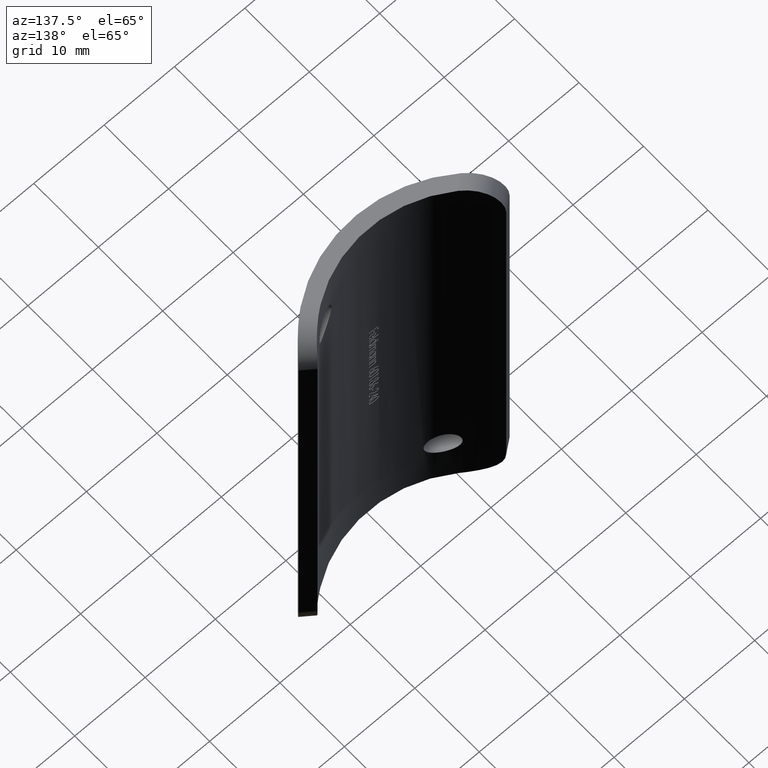
[diagram: clean part render]
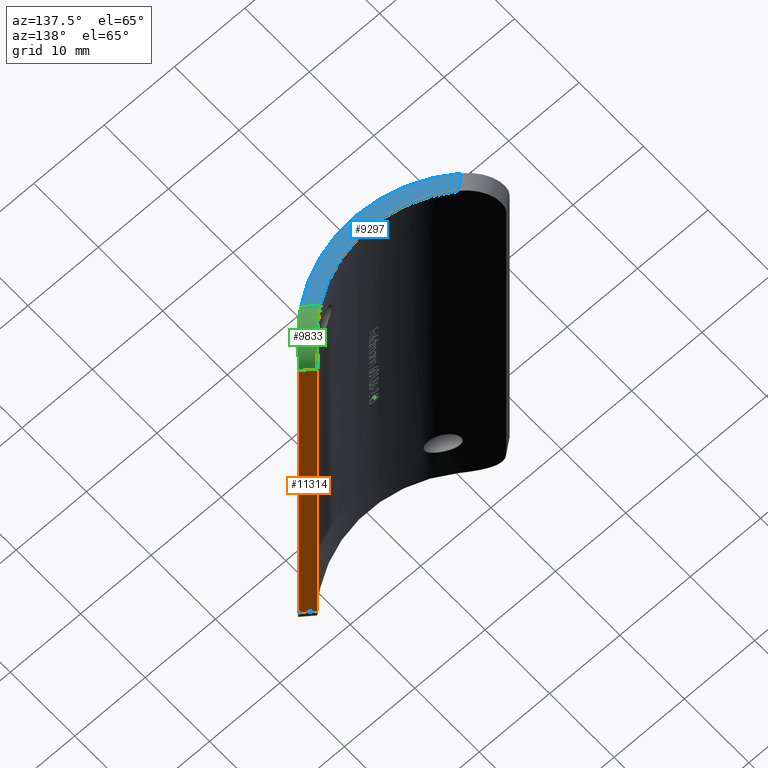
[diagram: same view with three faces highlighted in distinct colors, each labeled with its STEP entity id]
A machine part, auxiliary view with three faces highlighted in distinct colors.
Their STEP definitions:

[orange] entity #11314 — the highlighted planar face has unit normal (-0.6056, -0.7958, 0).
#765 = EDGE_CURVE ( 'NONE', #7775, #1296, #6650, .T. ) ;
#869 = CARTESIAN_POINT ( 'NONE',  ( 15.00000000000000000, 7.434111948691858100, 30.00000000000000400 ) ) ;
#1296 = VERTEX_POINT ( 'NONE', #869 ) ;
#1856 = DIRECTION ( 'NONE',  ( 0.7957559681697615700, -0.6056174032524208600, -0.0000000000000000000 ) ) ;
#2138 = FACE_OUTER_BOUND ( 'NONE', #2798, .T. ) ;
#2221 = CARTESIAN_POINT ( 'NONE',  ( 15.00000000000000000, 7.434111948691857200, 30.00000000000000400 ) ) ;
#2495 = VECTOR ( 'NONE', #3023, 1000.000000000000100 ) ;
#2774 = DIRECTION ( 'NONE',  ( -0.6056174032524208600, -0.7957559681697615700, 0.0000000000000000000 ) ) ;
#2798 = EDGE_LOOP ( 'NONE', ( #10277, #6446, #5200, #8517 ) ) ;
#2819 = DIRECTION ( 'NONE',  ( 0.7957559681697615700, -0.6056174032524208600, 0.0000000000000000000 ) ) ;
#3023 = DIRECTION ( 'NONE',  ( -0.7957559681697615700, 0.6056174032524208600, 0.0000000000000000000 ) ) ;
#3203 = VERTEX_POINT ( 'NONE', #10839 ) ;
#3578 = CARTESIAN_POINT ( 'NONE',  ( 15.00000000000000000, 7.434111948691858100, 35.00000000000000000 ) ) ;
#3836 = CARTESIAN_POINT ( 'NONE',  ( 13.40848806366047800, 8.645346755196698000, -30.00000000000000000 ) ) ;
#4100 = LINE ( 'NONE', #3578, #6310 ) ;
#4591 = PLANE ( 'NONE',  #5584 ) ;
#4730 = VECTOR ( 'NONE', #1856, 1000.000000000000100 ) ;
#4826 = EDGE_CURVE ( 'NONE', #3203, #11764, #12204, .T. ) ;
#5091 = VECTOR ( 'NONE', #6739, 1000.000000000000000 ) ;
#5200 = ORIENTED_EDGE ( 'NONE', *, *, #7853, .F. ) ;
#5332 = EDGE_CURVE ( 'NONE', #1296, #3203, #4100, .T. ) ;
#5584 = AXIS2_PLACEMENT_3D ( 'NONE', #8390, #2774, #2819 ) ;
#5630 = CARTESIAN_POINT ( 'NONE',  ( 13.40848806366047800, 8.645346755196698000, 30.00000000000000400 ) ) ;
#6310 = VECTOR ( 'NONE', #8079, 1000.000000000000000 ) ;
#6446 = ORIENTED_EDGE ( 'NONE', *, *, #4826, .T. ) ;
#6558 = LINE ( 'NONE', #6897, #5091 ) ;
#6650 = LINE ( 'NONE', #2221, #4730 ) ;
#6739 = DIRECTION ( 'NONE',  ( -0.0000000000000000000, -0.0000000000000000000, -1.000000000000000000 ) ) ;
#6897 = CARTESIAN_POINT ( 'NONE',  ( 13.40848806366047800, 8.645346755196698000, 35.00000000000000000 ) ) ;
#7735 = CARTESIAN_POINT ( 'NONE',  ( 13.40848806366047800, 8.645346755196698000, -30.00000000000000000 ) ) ;
#7775 = VERTEX_POINT ( 'NONE', #5630 ) ;
#7853 = EDGE_CURVE ( 'NONE', #7775, #11764, #6558, .T. ) ;
#8079 = DIRECTION ( 'NONE',  ( -0.0000000000000000000, -0.0000000000000000000, -1.000000000000000000 ) ) ;
#8390 = CARTESIAN_POINT ( 'NONE',  ( 13.40848806366047800, 8.645346755196698000, 35.00000000000000000 ) ) ;
#8517 = ORIENTED_EDGE ( 'NONE', *, *, #765, .T. ) ;
#10277 = ORIENTED_EDGE ( 'NONE', *, *, #5332, .T. ) ;
#10839 = CARTESIAN_POINT ( 'NONE',  ( 15.00000000000000000, 7.434111948691858100, -30.00000000000000000 ) ) ;
#11314 = ADVANCED_FACE ( 'NONE', ( #2138 ), #4591, .F. ) ;
#11764 = VERTEX_POINT ( 'NONE', #3836 ) ;
#12204 = LINE ( 'NONE', #7735, #2495 ) ;

[blue] entity #9297 — the highlighted planar face has unit normal (0, 0, 1).
#81 = LINE ( 'NONE', #1200, #10066 ) ;
#243 = DIRECTION ( 'NONE',  ( -0.7957559681697615700, 0.6056174032524208600, 0.0000000000000000000 ) ) ;
#292 = DIRECTION ( 'NONE',  ( -0.7957559681697615700, -0.6056174032524208600, 0.0000000000000000000 ) ) ;
#345 = DIRECTION ( 'NONE',  ( -0.0000000000000000000, -0.0000000000000000000, -1.000000000000000000 ) ) ;
#1029 = VERTEX_POINT ( 'NONE', #8018 ) ;
#1200 = CARTESIAN_POINT ( 'NONE',  ( -11.97191298373789400, 3.455332107843047200, 35.00000000000000000 ) ) ;
#1288 = DIRECTION ( 'NONE',  ( 1.000000000000000000, 0.0000000000000000000, 0.0000000000000000000 ) ) ;
#1958 = PLANE ( 'NONE',  #9904 ) ;
#2173 = CARTESIAN_POINT ( 'NONE',  ( 10.38040104739837600, 4.666566914347885800, 35.00000000000000000 ) ) ;
#2611 = CIRCLE ( 'NONE', #6340, 16.85000000000000100 ) ;
#3839 = CARTESIAN_POINT ( 'NONE',  ( 0.0000000000000000000, 18.84999999999999800, 35.00000000000000000 ) ) ;
#4364 = FACE_OUTER_BOUND ( 'NONE', #10711, .T. ) ;
#4404 = ORIENTED_EDGE ( 'NONE', *, *, #8847, .T. ) ;
#4928 = LINE ( 'NONE', #2173, #9771 ) ;
#5372 = CIRCLE ( 'NONE', #8145, 18.84999999999999800 ) ;
#5897 = DIRECTION ( 'NONE',  ( 0.0000000000000000000, 0.0000000000000000000, 1.000000000000000000 ) ) ;
#6340 = AXIS2_PLACEMENT_3D ( 'NONE', #11654, #345, #1288 ) ;
#6487 = CARTESIAN_POINT ( 'NONE',  ( -11.43459983570475400, 3.864259224272533100, 35.00000000000000000 ) ) ;
#6557 = ORIENTED_EDGE ( 'NONE', *, *, #6893, .T. ) ;
#6649 = DIRECTION ( 'NONE',  ( 1.000000000000000000, 0.0000000000000000000, -0.0000000000000000000 ) ) ;
#6694 = ORIENTED_EDGE ( 'NONE', *, *, #11171, .T. ) ;
#6703 = VERTEX_POINT ( 'NONE', #6487 ) ;
#6893 = EDGE_CURVE ( 'NONE', #11841, #1029, #2611, .T. ) ;
#7716 = CARTESIAN_POINT ( 'NONE',  ( 11.43459983570475400, 3.864259224272533100, 35.00000000000000000 ) ) ;
#8018 = CARTESIAN_POINT ( 'NONE',  ( -9.776477136077502900, 5.126188765224366500, 35.00000000000000000 ) ) ;
#8145 = AXIS2_PLACEMENT_3D ( 'NONE', #11137, #10366, #11316 ) ;
#8657 = VERTEX_POINT ( 'NONE', #7716 ) ;
#8847 = EDGE_CURVE ( 'NONE', #1029, #6703, #81, .T. ) ;
#9191 = EDGE_CURVE ( 'NONE', #6703, #8657, #5372, .T. ) ;
#9297 = ADVANCED_FACE ( 'NONE', ( #4364 ), #1958, .T. ) ;
#9771 = VECTOR ( 'NONE', #243, 1000.000000000000100 ) ;
#9904 = AXIS2_PLACEMENT_3D ( 'NONE', #3839, #5897, #6649 ) ;
#10066 = VECTOR ( 'NONE', #292, 1000.000000000000100 ) ;
#10366 = DIRECTION ( 'NONE',  ( 0.0000000000000000000, 0.0000000000000000000, 1.000000000000000000 ) ) ;
#10711 = EDGE_LOOP ( 'NONE', ( #12196, #6694, #6557, #4404 ) ) ;
#11137 = CARTESIAN_POINT ( 'NONE',  ( 0.0000000000000000000, 18.84999999999999800, 35.00000000000000000 ) ) ;
#11171 = EDGE_CURVE ( 'NONE', #8657, #11841, #4928, .T. ) ;
#11316 = DIRECTION ( 'NONE',  ( 1.000000000000000000, 0.0000000000000000000, 0.0000000000000000000 ) ) ;
#11475 = CARTESIAN_POINT ( 'NONE',  ( 9.776477136077502900, 5.126188765224366500, 35.00000000000000000 ) ) ;
#11654 = CARTESIAN_POINT ( 'NONE',  ( 0.0000000000000000000, 18.84999999999999800, 35.00000000000000000 ) ) ;
#11841 = VERTEX_POINT ( 'NONE', #11475 ) ;
#12196 = ORIENTED_EDGE ( 'NONE', *, *, #9191, .T. ) ;

[green] entity #9833 — the highlighted cylindrical surface (partial cylindrical patch) has radius 5 mm, axis along (0.7958, -0.6056, 0).
#243 = DIRECTION ( 'NONE',  ( -0.7957559681697615700, 0.6056174032524208600, 0.0000000000000000000 ) ) ;
#411 = CARTESIAN_POINT ( 'NONE',  ( 12.29491358177902100, 7.325560251793843000, 33.79205751649312400 ) ) ;
#765 = EDGE_CURVE ( 'NONE', #7775, #1296, #6650, .T. ) ;
#869 = CARTESIAN_POINT ( 'NONE',  ( 15.00000000000000000, 7.434111948691858100, 30.00000000000000400 ) ) ;
#1296 = VERTEX_POINT ( 'NONE', #869 ) ;
#1328 = CARTESIAN_POINT ( 'NONE',  ( 12.74975151909580300, 7.831780217329218800, 33.07881322343138200 ) ) ;
#1374 = CARTESIAN_POINT ( 'NONE',  ( 12.11475316275703100, 7.135406875230894600, 34.00217442501263300 ) ) ;
#1444 = EDGE_CURVE ( 'NONE', #11841, #7775, #6658, .T. ) ;
#1582 = CARTESIAN_POINT ( 'NONE',  ( 14.98017149256965700, 7.407923962582001000, 30.65952120971341100 ) ) ;
#1850 = ORIENTED_EDGE ( 'NONE', *, *, #4849, .F. ) ;
#1856 = DIRECTION ( 'NONE',  ( 0.7957559681697615700, -0.6056174032524208600, -0.0000000000000000000 ) ) ;
#2088 = CARTESIAN_POINT ( 'NONE',  ( 15.00000000000000900, 7.434111948691859000, 30.33255577658930200 ) ) ;
#2111 = CARTESIAN_POINT ( 'NONE',  ( 12.99066933612780900, 8.116881106718688300, 32.52833593479332600 ) ) ;
#2173 = CARTESIAN_POINT ( 'NONE',  ( 10.38040104739837600, 4.666566914347885800, 35.00000000000000000 ) ) ;
#2221 = CARTESIAN_POINT ( 'NONE',  ( 15.00000000000000000, 7.434111948691857200, 30.00000000000000400 ) ) ;
#2236 = CARTESIAN_POINT ( 'NONE',  ( 9.776477136077502900, 5.126188765224366500, 35.00000000000000000 ) ) ;
#2448 = CARTESIAN_POINT ( 'NONE',  ( 13.34084726299949600, 5.530048740184309300, 34.35410636471512200 ) ) ;
#2489 = CARTESIAN_POINT ( 'NONE',  ( 13.13182814757395000, 5.323355394330199900, 34.50704592058959700 ) ) ;
#2527 = CARTESIAN_POINT ( 'NONE',  ( 14.21118996456291600, 6.463750795384947300, 33.32325900056221700 ) ) ;
#2598 = CARTESIAN_POINT ( 'NONE',  ( 11.95497879551214200, 4.272385519068501800, 34.96944093646262500 ) ) ;
#2726 = FACE_OUTER_BOUND ( 'NONE', #9188, .T. ) ;
#3171 = CARTESIAN_POINT ( 'NONE',  ( 10.81000424004397000, 5.923607192543448400, 34.84122858094762900 ) ) ;
#3437 = CARTESIAN_POINT ( 'NONE',  ( 14.83747567219039200, 7.223558456733861100, 31.61750925799333700 ) ) ;
#4002 = CARTESIAN_POINT ( 'NONE',  ( 13.08982051763039300, 8.238908155426658600, 32.23729330695506000 ) ) ;
#4041 = CARTESIAN_POINT ( 'NONE',  ( 13.40848806366047800, 8.645346755196698000, 30.00000000000000400 ) ) ;
#4081 = CARTESIAN_POINT ( 'NONE',  ( 11.72391447526827200, 6.744267240269417500, 34.36133401783844500 ) ) ;
#4305 = CARTESIAN_POINT ( 'NONE',  ( 14.35049252287866000, 6.626265360706072200, 33.06537433690047600 ) ) ;
#4346 = CARTESIAN_POINT ( 'NONE',  ( 11.43459983570475400, 3.864259224272533100, 35.00000000000000000 ) ) ;
#4358 = DIRECTION ( 'NONE',  ( 0.6056174032524208600, 0.7957559681697616800, 0.0000000000000000000 ) ) ;
#4382 = CARTESIAN_POINT ( 'NONE',  ( 14.80252795410409100, 7.179022917103778500, 31.77452762741991800 ) ) ;
#4395 = CARTESIAN_POINT ( 'NONE',  ( -3.028087016262111900, 14.87122015915117900, 30.00000000000000400 ) ) ;
#4730 = VECTOR ( 'NONE', #1856, 1000.000000000000100 ) ;
#4849 = EDGE_CURVE ( 'NONE', #1296, #8657, #6512, .T. ) ;
#4928 = LINE ( 'NONE', #2173, #9771 ) ;
#5025 = CARTESIAN_POINT ( 'NONE',  ( 13.30873325104486500, 8.515378541317035800, 31.31200938375187100 ) ) ;
#5251 = CARTESIAN_POINT ( 'NONE',  ( 13.89981820611760600, 6.115317302555110900, 33.78430301069177200 ) ) ;
#5335 = CARTESIAN_POINT ( 'NONE',  ( 13.72666818670005800, 5.928007593610680600, 33.99069836172633100 ) ) ;
#5630 = CARTESIAN_POINT ( 'NONE',  ( 13.40848806366047800, 8.645346755196698000, 30.00000000000000400 ) ) ;
#6316 = CARTESIAN_POINT ( 'NONE',  ( 14.92131135071593900, 7.331406202439091600, 31.14192448130139100 ) ) ;
#6512 = B_SPLINE_CURVE_WITH_KNOTS ( 'NONE', 3,
 ( #10829, #2088, #1582, #6316, #7254, #3437, #4382, #11857, #10945, #4305, #2527, #5251, #5335, #2448, #2489, #11897, #9099, #2598, #7290, #4346 ),
 .UNSPECIFIED., .F., .F.,
 ( 4, 2, 2, 2, 2, 2, 2, 2, 2, 4 ),
 ( 0.0000000000000000000, 0.0009835240570124183800, 0.001475286085518628100, 0.001967048114024837200, 0.002950572171037236700, 0.003934096228049636200, 0.004917620285062036600, 0.005901144342074435300, 0.006884668399086835700, 0.007868192456099234300 ),
 .UNSPECIFIED. ) ;
#6650 = LINE ( 'NONE', #2221, #4730 ) ;
#6658 = B_SPLINE_CURVE_WITH_KNOTS ( 'NONE', 3,
 ( #2236, #8798, #10731, #10610, #3171, #9624, #6835, #9747, #4081, #1374, #411, #6968, #1328, #2111, #4002, #9785, #5025, #10645, #8674, #4041 ),
 .UNSPECIFIED., .F., .F.,
 ( 4, 2, 2, 2, 2, 2, 2, 2, 2, 4 ),
 ( 0.0000000000000000000, 0.0009855369990962722600, 0.001478305498644404300, 0.001971073998192536700, 0.002956610997288806400, 0.003942147996385076900, 0.004927684995481347400, 0.005913221994577617100, 0.006898758993673888500, 0.007884295992770159000 ),
 .UNSPECIFIED. ) ;
#6835 = CARTESIAN_POINT ( 'NONE',  ( 11.17113097699290400, 6.234458784383938300, 34.69526709493180100 ) ) ;
#6968 = CARTESIAN_POINT ( 'NONE',  ( 12.61120181400760600, 7.672558418859013700, 33.33126961921773600 ) ) ;
#7150 = DIRECTION ( 'NONE',  ( 0.7957559681697616800, -0.6056174032524208600, 0.0000000000000000000 ) ) ;
#7254 = CARTESIAN_POINT ( 'NONE',  ( 14.89679091842868900, 7.299655952550721400, 31.30137464960003900 ) ) ;
#7290 = CARTESIAN_POINT ( 'NONE',  ( 11.69894922198641800, 4.065966266599120100, 35.00000000000000000 ) ) ;
#7334 = ORIENTED_EDGE ( 'NONE', *, *, #765, .F. ) ;
#7716 = CARTESIAN_POINT ( 'NONE',  ( 11.43459983570475400, 3.864259224272533100, 35.00000000000000000 ) ) ;
#7775 = VERTEX_POINT ( 'NONE', #5630 ) ;
#8202 = ORIENTED_EDGE ( 'NONE', *, *, #11171, .F. ) ;
#8657 = VERTEX_POINT ( 'NONE', #7716 ) ;
#8674 = CARTESIAN_POINT ( 'NONE',  ( 13.40848806366047400, 8.645346755196699800, 30.33317573417556900 ) ) ;
#8798 = CARTESIAN_POINT ( 'NONE',  ( 10.04773283315773500, 5.319424089958052300, 35.00000000000001400 ) ) ;
#8888 = AXIS2_PLACEMENT_3D ( 'NONE', #4395, #7150, #4358 ) ;
#9099 = CARTESIAN_POINT ( 'NONE',  ( 12.45094737796170900, 4.693649080817577300, 34.84540144987070700 ) ) ;
#9188 = EDGE_LOOP ( 'NONE', ( #1850, #7334, #9367, #8202 ) ) ;
#9367 = ORIENTED_EDGE ( 'NONE', *, *, #1444, .F. ) ;
#9624 = CARTESIAN_POINT ( 'NONE',  ( 11.05220750619704600, 6.130073430935431700, 34.74940254093699100 ) ) ;
#9747 = CARTESIAN_POINT ( 'NONE',  ( 11.51298986382174200, 6.542776337951365500, 34.51200485715259700 ) ) ;
#9771 = VECTOR ( 'NONE', #243, 1000.000000000000100 ) ;
#9785 = CARTESIAN_POINT ( 'NONE',  ( 13.24848362075939800, 8.437682627377396800, 31.63119371294968800 ) ) ;
#9833 = ADVANCED_FACE ( 'NONE', ( #2726 ), #11412, .T. ) ;
#10610 = CARTESIAN_POINT ( 'NONE',  ( 10.68653567845243500, 5.821318474825600800, 34.87914062275346800 ) ) ;
#10645 = CARTESIAN_POINT ( 'NONE',  ( 13.38859445942264200, 8.619050882598680000, 30.66218690354006400 ) ) ;
#10731 = CARTESIAN_POINT ( 'NONE',  ( 10.30896701416035900, 5.517631588274194400, 34.96991414432874700 ) ) ;
#10829 = CARTESIAN_POINT ( 'NONE',  ( 15.00000000000000000, 7.434111948691858100, 30.00000000000000400 ) ) ;
#10945 = CARTESIAN_POINT ( 'NONE',  ( 14.58626420955229900, 6.908592185583636100, 32.51962279095426600 ) ) ;
#11171 = EDGE_CURVE ( 'NONE', #8657, #11841, #4928, .T. ) ;
#11412 = CYLINDRICAL_SURFACE ( 'NONE', #8888, 5.000000000000000900 ) ;
#11475 = CARTESIAN_POINT ( 'NONE',  ( 9.776477136077502900, 5.126188765224366500, 35.00000000000000000 ) ) ;
#11841 = VERTEX_POINT ( 'NONE', #11475 ) ;
#11857 = CARTESIAN_POINT ( 'NONE',  ( 14.68396447654466600, 7.029684993298096700, 32.23105437647467400 ) ) ;
#11897 = CARTESIAN_POINT ( 'NONE',  ( 12.68855081627455800, 4.906696841554016000, 34.75186880850953500 ) ) ;